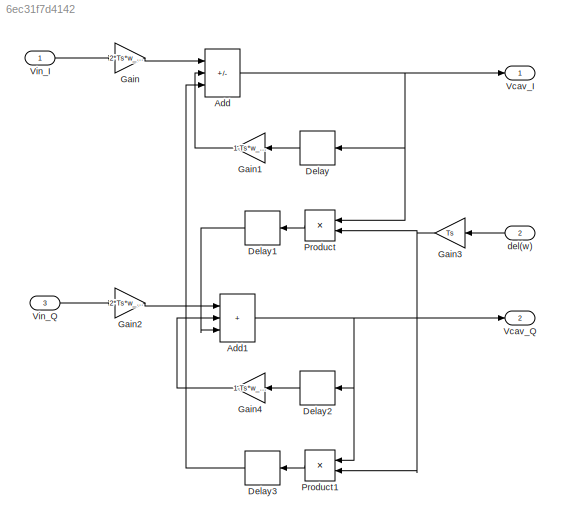
MODEL slx_6ec31f7d4142
KIND model
CONFIG AbsTol = auto
CONFIG EnableMultiTasking = off
CONFIG FixedStep = auto
CONFIG MaxStep = auto
CONFIG MinStep = auto
CONFIG RelTol = 1e-3
CONFIG SampleTimeConstraint = Unconstrained
CONFIG SolverName = VariableStepAuto
CONFIG StartTime = 0.0
CONFIG StopTime = 10.0
WORKSPACE source: mxarray member
WORKSPACE QL: Simulink.Parameter (value not decoded)
WORKSPACE RL: Simulink.Parameter (value not decoded)
WORKSPACE RQ: Simulink.Parameter (value not decoded)
WORKSPACE Ts: Simulink.Parameter (value not decoded)
WORKSPACE f0: Simulink.Parameter (value not decoded)
WORKSPACE w_hbw: Simulink.Parameter (value not decoded)
BLOCK [Sum] Add
  IconShape = rectangular
  Inputs = ++-
BLOCK [Sum] Add1
  IconShape = rectangular
  Inputs = +++
BLOCK [Delay] Delay
  DelayLength = 1
  InitialCondition = 0
  InputPortMap = u0
BLOCK [Delay] Delay1
  DelayLength = 1
  InitialCondition = 0
  InputPortMap = u0
BLOCK [Delay] Delay2
  DelayLength = 1
  InitialCondition = 0
  InputPortMap = u0
BLOCK [Delay] Delay3
  DelayLength = 1
  InitialCondition = 0
  InputPortMap = u0
BLOCK [Gain] Gain
  Gain = 2*Ts*w_hbw*RL
BLOCK [Gain] Gain1
  Gain = 1-Ts*w_hbw
BLOCK [Gain] Gain2
  Gain = 2*Ts*w_hbw*RL
BLOCK [Gain] Gain3
  Gain = Ts
BLOCK [Gain] Gain4
  Gain = 1-Ts*w_hbw
BLOCK [Product] Product
BLOCK [Product] Product1
BLOCK [Outport] Vcav_I
BLOCK [Outport] Vcav_Q
  Port = 2
BLOCK [Inport] Vin_I
BLOCK [Inport] Vin_Q
  Port = 3
BLOCK [Inport] del(w)
  Port = 2
NET Add1:1 -> Delay2:1, Product1:1, Vcav_Q:1
NET Add:1 -> Delay:1, Product:1, Vcav_I:1
LINE Delay1:1 -> Add1:3
LINE Delay2:1 -> Gain4:1
LINE Delay3:1 -> Add:3
LINE Delay:1 -> Gain1:1
LINE Gain1:1 -> Add:2
LINE Gain2:1 -> Add1:1
NET Gain3:1 -> Product1:2, Product:2
LINE Gain4:1 -> Add1:2
LINE Gain:1 -> Add:1
LINE Product1:1 -> Delay3:1
LINE Product:1 -> Delay1:1
LINE Vin_I:1 -> Gain:1
LINE Vin_Q:1 -> Gain2:1
LINE del(w):1 -> Gain3:1
note: NET lines group one-source signal fan-out (src -> all destinations, sorted); 1:1 wires keep LINE
